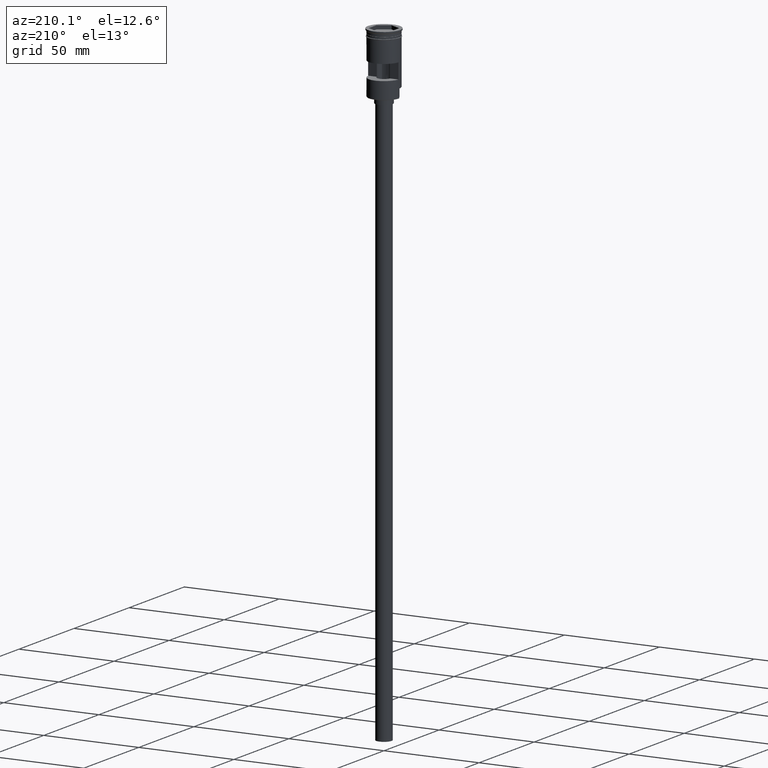
[diagram: clean part render]
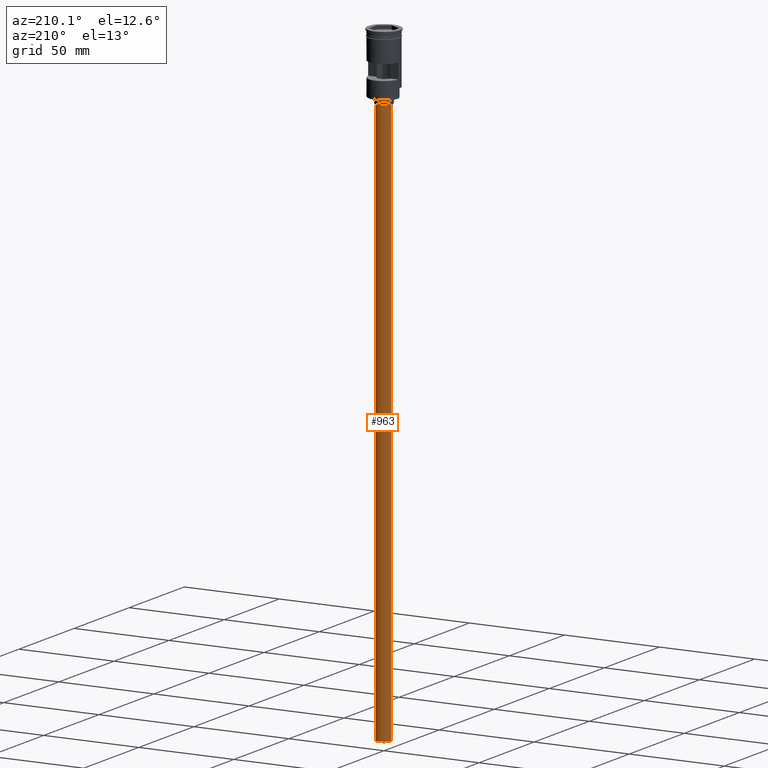
[diagram: same view with one face highlighted and labeled with its STEP entity id]
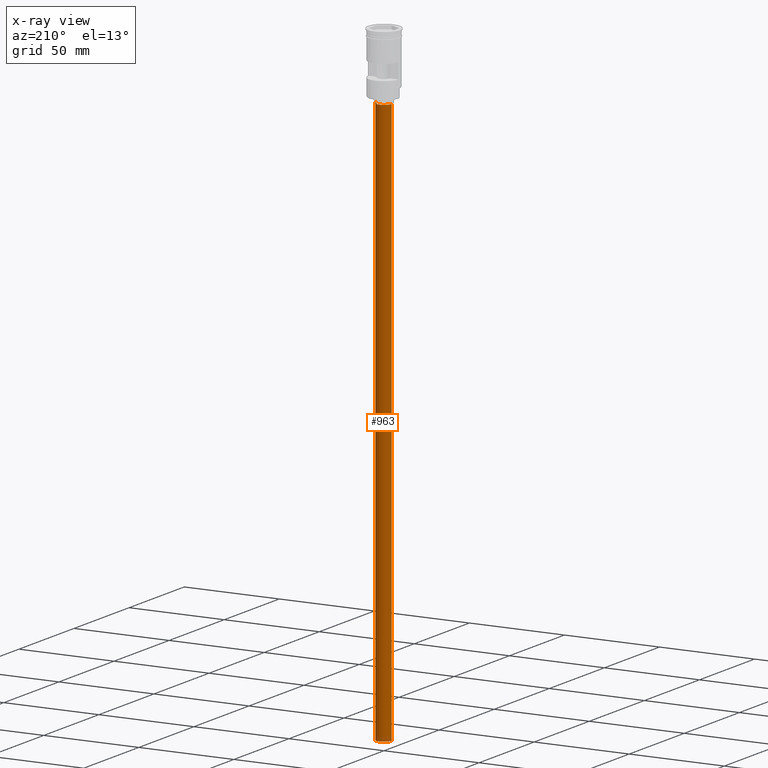
[diagram: x-ray of the same camera — body ghosted, the highlighted face saturated]
A machine part, auxiliary view. The second image highlights one B-rep face of the part: STEP entity #963.
The next image is the same camera in x-ray: the body ghosted, the highlighted face saturated — about 0% of this face is hidden behind the body in this view.
In plain terms, the highlighted cylindrical surface (edge-blend (fillet) strip) has radius 4 mm, axis along (-0, -0, 1).
Its self-contained STEP definition (entity closure, byte-faithful):
#17 = CARTESIAN_POINT ( 'NONE',  ( -4.000000000000000000, 4.898587196589412829E-16, -331.9999999999999432 ) ) ;
#69 = DIRECTION ( 'NONE',  ( 1.000000000000000000, 0.000000000000000000, 0.000000000000000000 ) ) ;
#72 = CYLINDRICAL_SURFACE ( 'NONE', #609, 4.000000000000000000 ) ;
#81 = VECTOR ( 'NONE', #1246, 1000.000000000000000 ) ;
#89 = EDGE_CURVE ( 'NONE', #1381, #451, #231, .T. ) ;
#105 = CARTESIAN_POINT ( 'NONE',  ( -4.000000000000000000, 4.898587196589412829E-16, -331.9999999999999432 ) ) ;
#117 = ORIENTED_EDGE ( 'NONE', *, *, #746, .F. ) ;
#231 = LINE ( 'NONE', #105, #81 ) ;
#239 = AXIS2_PLACEMENT_3D ( 'NONE', #1371, #999, #785 ) ;
#437 = CARTESIAN_POINT ( 'NONE',  ( 0.000000000000000000, 0.000000000000000000, -331.9999999999999432 ) ) ;
#439 = ORIENTED_EDGE ( 'NONE', *, *, #89, .T. ) ;
#451 = VERTEX_POINT ( 'NONE', #615 ) ;
#532 = DIRECTION ( 'NONE',  ( -1.000000000000000000, 0.000000000000000000, 0.000000000000000000 ) ) ;
#609 = AXIS2_PLACEMENT_3D ( 'NONE', #437, #691, #69 ) ;
#615 = CARTESIAN_POINT ( 'NONE',  ( -4.000000000000000000, 4.898587196589412829E-16, -35.00000000000000000 ) ) ;
#657 = DIRECTION ( 'NONE',  ( -0.000000000000000000, -0.000000000000000000, 1.000000000000000000 ) ) ;
#691 = DIRECTION ( 'NONE',  ( -0.000000000000000000, -0.000000000000000000, 1.000000000000000000 ) ) ;
#731 = DIRECTION ( 'NONE',  ( 0.000000000000000000, 0.000000000000000000, -1.000000000000000000 ) ) ;
#746 = EDGE_CURVE ( 'NONE', #1381, #1060, #939, .T. ) ;
#785 = DIRECTION ( 'NONE',  ( -1.000000000000000000, 0.000000000000000000, 0.000000000000000000 ) ) ;
#861 = VECTOR ( 'NONE', #657, 1000.000000000000000 ) ;
#926 = VERTEX_POINT ( 'NONE', #948 ) ;
#939 = CIRCLE ( 'NONE', #239, 4.000000000000000000 ) ;
#943 = CIRCLE ( 'NONE', #1180, 4.000000000000000000 ) ;
#948 = CARTESIAN_POINT ( 'NONE',  ( 4.000000000000000000, 0.000000000000000000, -35.00000000000000000 ) ) ;
#963 = ADVANCED_FACE ( 'NONE', ( #1544 ), #72, .T. ) ;
#977 = CARTESIAN_POINT ( 'NONE',  ( 0.000000000000000000, 0.000000000000000000, -35.00000000000000000 ) ) ;
#999 = DIRECTION ( 'NONE',  ( 0.000000000000000000, 0.000000000000000000, -1.000000000000000000 ) ) ;
#1060 = VERTEX_POINT ( 'NONE', #1497 ) ;
#1112 = CARTESIAN_POINT ( 'NONE',  ( 4.000000000000000000, 0.000000000000000000, -331.9999999999999432 ) ) ;
#1134 = LINE ( 'NONE', #1112, #861 ) ;
#1147 = EDGE_LOOP ( 'NONE', ( #117, #439, #1327, #1158 ) ) ;
#1158 = ORIENTED_EDGE ( 'NONE', *, *, #1341, .F. ) ;
#1180 = AXIS2_PLACEMENT_3D ( 'NONE', #977, #731, #532 ) ;
#1246 = DIRECTION ( 'NONE',  ( -0.000000000000000000, -0.000000000000000000, 1.000000000000000000 ) ) ;
#1300 = EDGE_CURVE ( 'NONE', #451, #926, #943, .T. ) ;
#1327 = ORIENTED_EDGE ( 'NONE', *, *, #1300, .T. ) ;
#1341 = EDGE_CURVE ( 'NONE', #1060, #926, #1134, .T. ) ;
#1371 = CARTESIAN_POINT ( 'NONE',  ( 0.000000000000000000, 0.000000000000000000, -331.9999999999999432 ) ) ;
#1381 = VERTEX_POINT ( 'NONE', #17 ) ;
#1497 = CARTESIAN_POINT ( 'NONE',  ( 4.000000000000000000, 0.000000000000000000, -331.9999999999999432 ) ) ;
#1544 = FACE_OUTER_BOUND ( 'NONE', #1147, .T. ) ;